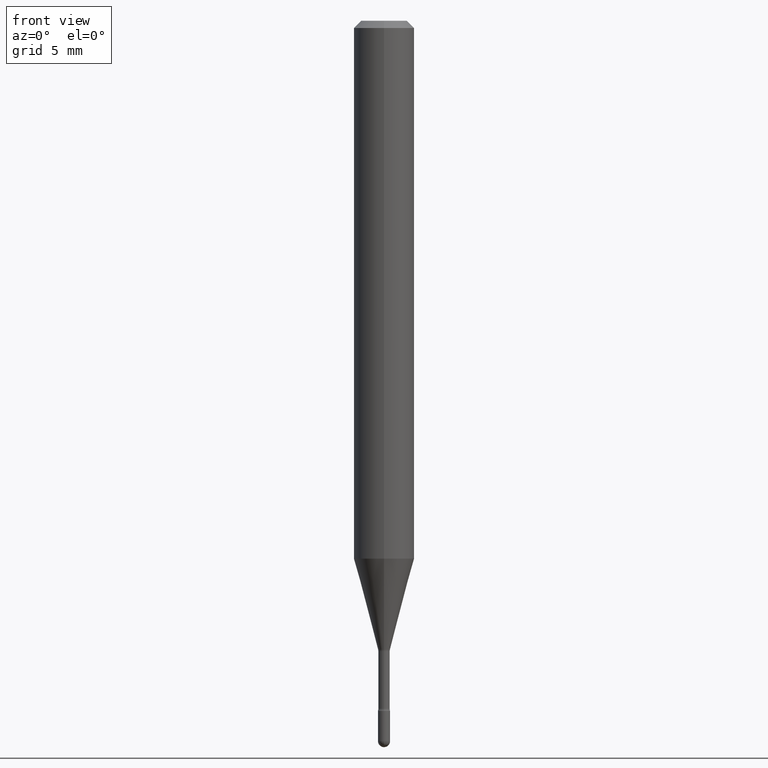
[diagram: clean part render]
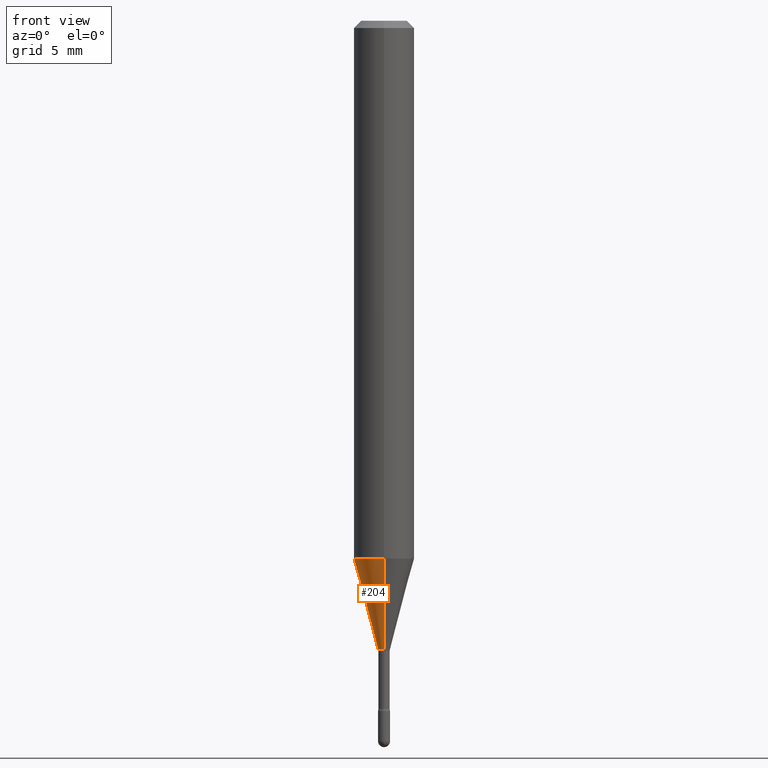
[diagram: same view with one face highlighted and labeled with its STEP entity id]
A machine part, front view. The second image highlights one B-rep face of the part: STEP entity #204.
In plain terms, the highlighted conical surface has half-angle 15 deg.
Its self-contained STEP definition (entity closure, byte-faithful):
#2 = CARTESIAN_POINT ( 'NONE',  ( 4.440892098500895360E-16, 0.06249999999999610728, -1.110598421515880396 ) ) ;
#11 = EDGE_CURVE ( 'NONE', #408, #24, #214, .T. ) ;
#18 = AXIS2_PLACEMENT_3D ( 'NONE', #317, #497, #107 ) ;
#24 = VERTEX_POINT ( 'NONE', #2 ) ;
#35 = DIRECTION ( 'NONE',  ( -6.982962677686265133E-15, -1.000000000000000000, 0.000000000000000000 ) ) ;
#49 = EDGE_LOOP ( 'NONE', ( #146, #305, #63, #468 ) ) ;
#60 = AXIS2_PLACEMENT_3D ( 'NONE', #112, #505, #35 ) ;
#63 = ORIENTED_EDGE ( 'NONE', *, *, #81, .T. ) ;
#81 = EDGE_CURVE ( 'NONE', #530, #127, #484, .T. ) ;
#100 = DIRECTION ( 'NONE',  ( 1.839019923739600315E-15, 0.2588190451025249583, 0.9659258262890670910 ) ) ;
#107 = DIRECTION ( 'NONE',  ( -6.982962677686265133E-15, -1.000000000000000000, 0.000000000000000000 ) ) ;
#112 = CARTESIAN_POINT ( 'NONE',  ( 3.174526708052502707E-29, -4.532148335475136049E-15, -1.298092501787273090 ) ) ;
#118 = AXIS2_PLACEMENT_3D ( 'NONE', #211, #528, #431 ) ;
#127 = VERTEX_POINT ( 'NONE', #231 ) ;
#146 = ORIENTED_EDGE ( 'NONE', *, *, #11, .F. ) ;
#147 = FACE_OUTER_BOUND ( 'NONE', #49, .T. ) ;
#204 = ADVANCED_FACE ( 'NONE', ( #147 ), #236, .T. ) ;
#211 = CARTESIAN_POINT ( 'NONE',  ( 2.716003941297613379E-29, -3.877533211634993835E-15, -1.110598421515880174 ) ) ;
#214 = LINE ( 'NONE', #487, #321 ) ;
#217 = VECTOR ( 'NONE', #375, 39.37007874015748143 ) ;
#231 = CARTESIAN_POINT ( 'NONE',  ( -4.364351673553644537E-16, -0.06250000000000387190, -1.110598421515879952 ) ) ;
#236 = CONICAL_SURFACE ( 'NONE', #18, 0.01226111260566398187, 0.2617993877991502960 ) ;
#243 = EDGE_CURVE ( 'NONE', #408, #530, #307, .T. ) ;
#305 = ORIENTED_EDGE ( 'NONE', *, *, #243, .T. ) ;
#307 = CIRCLE ( 'NONE', #60, 0.01226111260566398187 ) ;
#317 = CARTESIAN_POINT ( 'NONE',  ( 3.174526708052502707E-29, -4.532148335475136049E-15, -1.298092501787273090 ) ) ;
#321 = VECTOR ( 'NONE', #100, 39.37007874015748143 ) ;
#375 = DIRECTION ( 'NONE',  ( -1.807323732225330139E-15, -0.2588190451025181860, 0.9659258262890689783 ) ) ;
#408 = VERTEX_POINT ( 'NONE', #566 ) ;
#431 = DIRECTION ( 'NONE',  ( -6.982962677686265922E-15, -1.000000000000000000, 4.370956789862821150E-15 ) ) ;
#456 = CIRCLE ( 'NONE', #118, 0.06250000000000000000 ) ;
#465 = EDGE_CURVE ( 'NONE', #24, #127, #456, .T. ) ;
#468 = ORIENTED_EDGE ( 'NONE', *, *, #465, .F. ) ;
#484 = LINE ( 'NONE', #488, #217 ) ;
#487 = CARTESIAN_POINT ( 'NONE',  ( 8.712044494294308837E-17, 0.01226111260565944903, -1.298092501787273090 ) ) ;
#488 = CARTESIAN_POINT ( 'NONE',  ( -8.561889171222843884E-17, -0.01226111260566851470, -1.298092501787273090 ) ) ;
#497 = DIRECTION ( 'NONE',  ( -2.445531966082285698E-29, 3.491390890275590093E-15, 1.000000000000000000 ) ) ;
#505 = DIRECTION ( 'NONE',  ( -2.445531966082285698E-29, 3.491390890275590093E-15, 1.000000000000000000 ) ) ;
#528 = DIRECTION ( 'NONE',  ( -2.445531966082285698E-29, 3.491390890275590093E-15, 1.000000000000000000 ) ) ;
#530 = VERTEX_POINT ( 'NONE', #533 ) ;
#533 = CARTESIAN_POINT ( 'NONE',  ( -8.561889171222843884E-17, -0.01226111260566851470, -1.298092501787273090 ) ) ;
#566 = CARTESIAN_POINT ( 'NONE',  ( 2.656048273965165218E-16, 0.01226111260565944903, -1.298092501787273090 ) ) ;